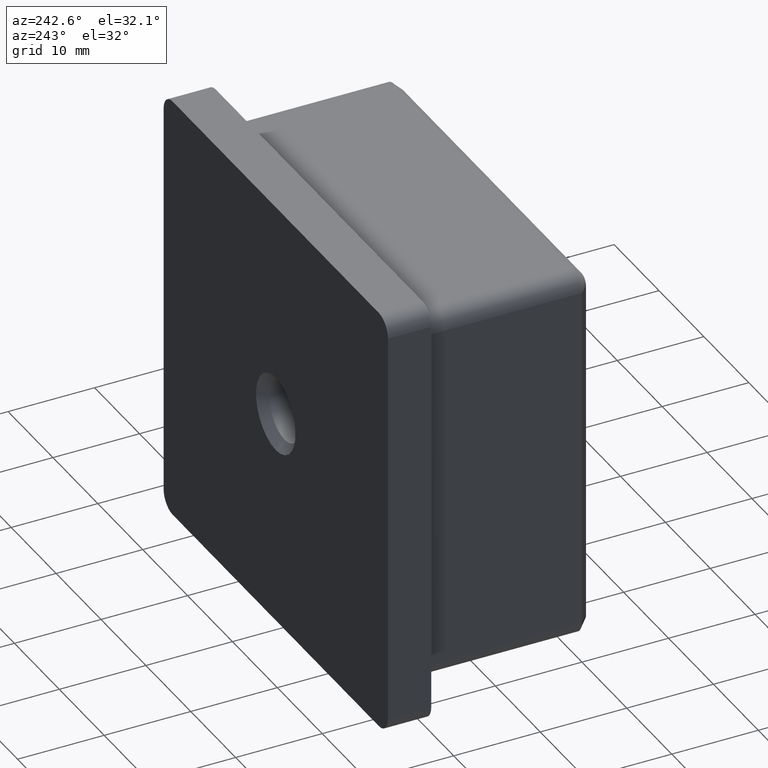
[diagram: clean part render]
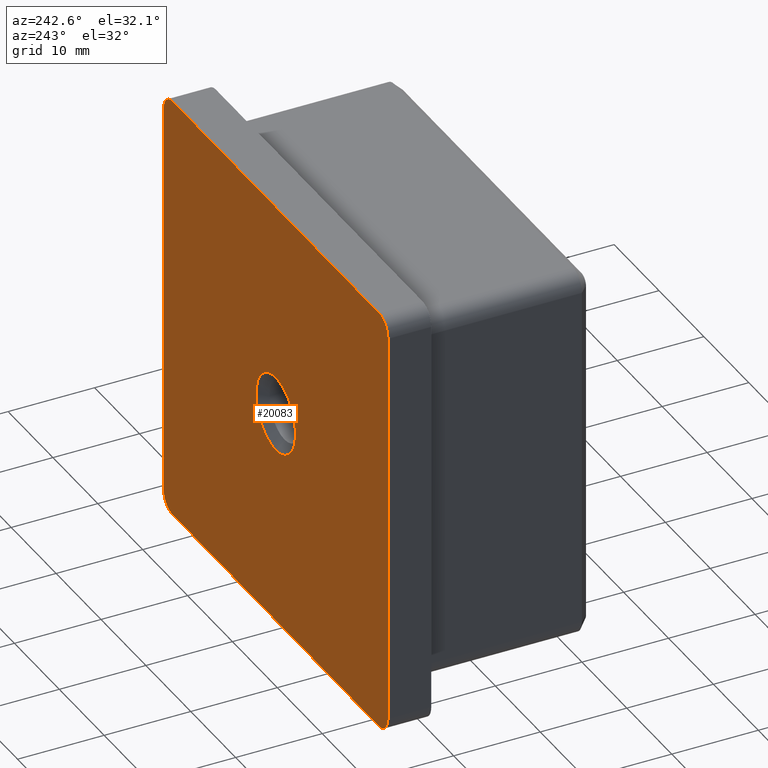
[diagram: same view with one face highlighted and labeled with its STEP entity id]
A machine part, auxiliary view. The second image highlights one B-rep face of the part: STEP entity #20083.
In plain terms, the highlighted planar face has unit normal (0, 1, 0).
Its self-contained STEP definition (entity closure, byte-faithful):
#58 = CARTESIAN_POINT ( 'NONE',  ( -22.99999999999999600, 5.000000000000000000, 23.00000000000000700 ) ) ;
#68 = VERTEX_POINT ( 'NONE', #19277 ) ;
#371 = AXIS2_PLACEMENT_3D ( 'NONE', #20260, #20325, #20385 ) ;
#508 = DIRECTION ( 'NONE',  ( -0.0000000000000000000, -1.000000000000000000, -0.0000000000000000000 ) ) ;
#601 = CARTESIAN_POINT ( 'NONE',  ( -25.00000000000000400, 5.000000000000000000, -24.99999999999999600 ) ) ;
#995 = DIRECTION ( 'NONE',  ( 0.0000000000000000000, 1.000000000000000000, 0.0000000000000000000 ) ) ;
#1202 = DIRECTION ( 'NONE',  ( 0.0000000000000000000, -0.0000000000000000000, 1.000000000000000000 ) ) ;
#1231 = EDGE_CURVE ( 'NONE', #3466, #12842, #7411, .T. ) ;
#1839 = DIRECTION ( 'NONE',  ( 0.0000000000000000000, 1.000000000000000000, 0.0000000000000000000 ) ) ;
#2136 = VECTOR ( 'NONE', #18858, 1000.000000000000000 ) ;
#2725 = CARTESIAN_POINT ( 'NONE',  ( -22.99999999999999600, 5.000000000000000000, 25.00000000000000400 ) ) ;
#2757 = PLANE ( 'NONE',  #12601 ) ;
#2893 = CARTESIAN_POINT ( 'NONE',  ( 0.0000000000000000000, 5.000000000000000000, 0.0000000000000000000 ) ) ;
#3293 = CARTESIAN_POINT ( 'NONE',  ( 2.449293598294707400E-016, 5.000000000000000000, 4.399999999999979000 ) ) ;
#3466 = VERTEX_POINT ( 'NONE', #2725 ) ;
#3972 = DIRECTION ( 'NONE',  ( 2.081668171172168500E-016, 0.0000000000000000000, 1.000000000000000000 ) ) ;
#4155 = LINE ( 'NONE', #10252, #9902 ) ;
#4354 = EDGE_CURVE ( 'NONE', #19771, #3466, #8960, .T. ) ;
#4691 = DIRECTION ( 'NONE',  ( 0.0000000000000000000, 1.000000000000000000, 0.0000000000000000000 ) ) ;
#4724 = ORIENTED_EDGE ( 'NONE', *, *, #14845, .T. ) ;
#4813 = VERTEX_POINT ( 'NONE', #10230 ) ;
#5391 = CIRCLE ( 'NONE', #9733, 4.399999999999979000 ) ;
#5497 = CARTESIAN_POINT ( 'NONE',  ( 22.99999999999999600, 5.000000000000000000, -24.99999999999999600 ) ) ;
#5572 = CARTESIAN_POINT ( 'NONE',  ( -25.00000000000000400, 5.000000000000000000, -23.00000000000000000 ) ) ;
#5586 = EDGE_CURVE ( 'NONE', #13824, #17261, #19431, .T. ) ;
#5923 = CIRCLE ( 'NONE', #20264, 2.000000000000001800 ) ;
#5989 = CARTESIAN_POINT ( 'NONE',  ( -25.00000000000000400, 5.000000000000000000, -24.99999999999999600 ) ) ;
#6166 = DIRECTION ( 'NONE',  ( 0.0000000000000000000, 0.0000000000000000000, 1.000000000000000000 ) ) ;
#6235 = EDGE_CURVE ( 'NONE', #4813, #13219, #4155, .T. ) ;
#7035 = CARTESIAN_POINT ( 'NONE',  ( -23.00000000000000700, 5.000000000000000000, -24.99999999999999600 ) ) ;
#7411 = LINE ( 'NONE', #14768, #8642 ) ;
#8231 = ORIENTED_EDGE ( 'NONE', *, *, #12610, .T. ) ;
#8642 = VECTOR ( 'NONE', #19541, 1000.000000000000000 ) ;
#8864 = FACE_OUTER_BOUND ( 'NONE', #12380, .T. ) ;
#8960 = CIRCLE ( 'NONE', #19646, 2.000000000000001800 ) ;
#9049 = CARTESIAN_POINT ( 'NONE',  ( -24.99999999999999300, 5.000000000000000000, 23.00000000000000400 ) ) ;
#9626 = ORIENTED_EDGE ( 'NONE', *, *, #18289, .T. ) ;
#9733 = AXIS2_PLACEMENT_3D ( 'NONE', #18236, #508, #16606 ) ;
#9902 = VECTOR ( 'NONE', #20003, 1000.000000000000000 ) ;
#9970 = CARTESIAN_POINT ( 'NONE',  ( 23.00000000000000700, 5.000000000000000000, 23.00000000000000400 ) ) ;
#10230 = CARTESIAN_POINT ( 'NONE',  ( 25.00000000000000400, 5.000000000000000000, 23.00000000000000400 ) ) ;
#10252 = CARTESIAN_POINT ( 'NONE',  ( 24.99999999999999600, 5.000000000000000000, -24.99999999999999600 ) ) ;
#10331 = ORIENTED_EDGE ( 'NONE', *, *, #14605, .T. ) ;
#10443 = DIRECTION ( 'NONE',  ( 0.0000000000000000000, 0.0000000000000000000, 1.000000000000000000 ) ) ;
#10900 = EDGE_CURVE ( 'NONE', #12700, #13824, #18173, .T. ) ;
#11215 = EDGE_LOOP ( 'NONE', ( #16901, #8231 ) ) ;
#11596 = VECTOR ( 'NONE', #3972, 1000.000000000000000 ) ;
#11834 = CARTESIAN_POINT ( 'NONE',  ( -23.00000000000000700, 5.000000000000000000, -23.00000000000000000 ) ) ;
#11973 = ORIENTED_EDGE ( 'NONE', *, *, #10900, .T. ) ;
#12380 = EDGE_LOOP ( 'NONE', ( #13830, #9626, #11973, #12423, #4724, #13037, #13339, #10331 ) ) ;
#12423 = ORIENTED_EDGE ( 'NONE', *, *, #5586, .T. ) ;
#12601 = AXIS2_PLACEMENT_3D ( 'NONE', #2893, #995, #1202 ) ;
#12610 = EDGE_CURVE ( 'NONE', #68, #18942, #5391, .T. ) ;
#12611 = DIRECTION ( 'NONE',  ( 0.0000000000000000000, 0.0000000000000000000, 1.000000000000000000 ) ) ;
#12700 = VERTEX_POINT ( 'NONE', #5497 ) ;
#12842 = VERTEX_POINT ( 'NONE', #19050 ) ;
#12993 = DIRECTION ( 'NONE',  ( 0.0000000000000000000, 0.0000000000000000000, 1.000000000000000000 ) ) ;
#13037 = ORIENTED_EDGE ( 'NONE', *, *, #4354, .T. ) ;
#13219 = VERTEX_POINT ( 'NONE', #16809 ) ;
#13339 = ORIENTED_EDGE ( 'NONE', *, *, #1231, .T. ) ;
#13824 = VERTEX_POINT ( 'NONE', #7035 ) ;
#13830 = ORIENTED_EDGE ( 'NONE', *, *, #6235, .T. ) ;
#14592 = CIRCLE ( 'NONE', #371, 4.399999999999979000 ) ;
#14605 = EDGE_CURVE ( 'NONE', #12842, #4813, #20380, .T. ) ;
#14768 = CARTESIAN_POINT ( 'NONE',  ( -24.99999999999999300, 5.000000000000000000, 25.00000000000000400 ) ) ;
#14845 = EDGE_CURVE ( 'NONE', #17261, #19771, #15585, .T. ) ;
#15181 = DIRECTION ( 'NONE',  ( 0.0000000000000000000, 1.000000000000000000, 0.0000000000000000000 ) ) ;
#15585 = LINE ( 'NONE', #601, #11596 ) ;
#15845 = CARTESIAN_POINT ( 'NONE',  ( 22.99999999999999600, 5.000000000000000000, -23.00000000000000000 ) ) ;
#16606 = DIRECTION ( 'NONE',  ( 0.0000000000000000000, 0.0000000000000000000, 1.000000000000000000 ) ) ;
#16809 = CARTESIAN_POINT ( 'NONE',  ( 24.99999999999999600, 5.000000000000000000, -23.00000000000000000 ) ) ;
#16818 = AXIS2_PLACEMENT_3D ( 'NONE', #9970, #1839, #12993 ) ;
#16901 = ORIENTED_EDGE ( 'NONE', *, *, #19748, .T. ) ;
#17261 = VERTEX_POINT ( 'NONE', #5572 ) ;
#18173 = LINE ( 'NONE', #5989, #2136 ) ;
#18236 = CARTESIAN_POINT ( 'NONE',  ( 2.449293598294707400E-016, 5.000000000000000000, 0.0000000000000000000 ) ) ;
#18289 = EDGE_CURVE ( 'NONE', #13219, #12700, #5923, .T. ) ;
#18858 = DIRECTION ( 'NONE',  ( -1.000000000000000000, -0.0000000000000000000, -0.0000000000000000000 ) ) ;
#18942 = VERTEX_POINT ( 'NONE', #3293 ) ;
#19050 = CARTESIAN_POINT ( 'NONE',  ( 23.00000000000000700, 5.000000000000000000, 25.00000000000000400 ) ) ;
#19201 = DIRECTION ( 'NONE',  ( 0.0000000000000000000, 1.000000000000000000, 0.0000000000000000000 ) ) ;
#19261 = AXIS2_PLACEMENT_3D ( 'NONE', #11834, #15181, #10443 ) ;
#19277 = CARTESIAN_POINT ( 'NONE',  ( 7.837739514543038200E-016, 5.000000000000000000, -4.399999999999979000 ) ) ;
#19431 = CIRCLE ( 'NONE', #19261, 2.000000000000001800 ) ;
#19541 = DIRECTION ( 'NONE',  ( 1.000000000000000000, 0.0000000000000000000, 0.0000000000000000000 ) ) ;
#19646 = AXIS2_PLACEMENT_3D ( 'NONE', #58, #19201, #12611 ) ;
#19748 = EDGE_CURVE ( 'NONE', #18942, #68, #14592, .T. ) ;
#19771 = VERTEX_POINT ( 'NONE', #9049 ) ;
#20003 = DIRECTION ( 'NONE',  ( -1.387778780781445700E-016, -0.0000000000000000000, -1.000000000000000000 ) ) ;
#20083 = ADVANCED_FACE ( 'NONE', ( #20140, #8864 ), #2757, .T. ) ;
#20140 = FACE_BOUND ( 'NONE', #11215, .T. ) ;
#20260 = CARTESIAN_POINT ( 'NONE',  ( 2.449293598294707400E-016, 5.000000000000000000, 0.0000000000000000000 ) ) ;
#20264 = AXIS2_PLACEMENT_3D ( 'NONE', #15845, #4691, #6166 ) ;
#20325 = DIRECTION ( 'NONE',  ( -0.0000000000000000000, -1.000000000000000000, -0.0000000000000000000 ) ) ;
#20380 = CIRCLE ( 'NONE', #16818, 1.999999999999998200 ) ;
#20385 = DIRECTION ( 'NONE',  ( 0.0000000000000000000, 0.0000000000000000000, 1.000000000000000000 ) ) ;